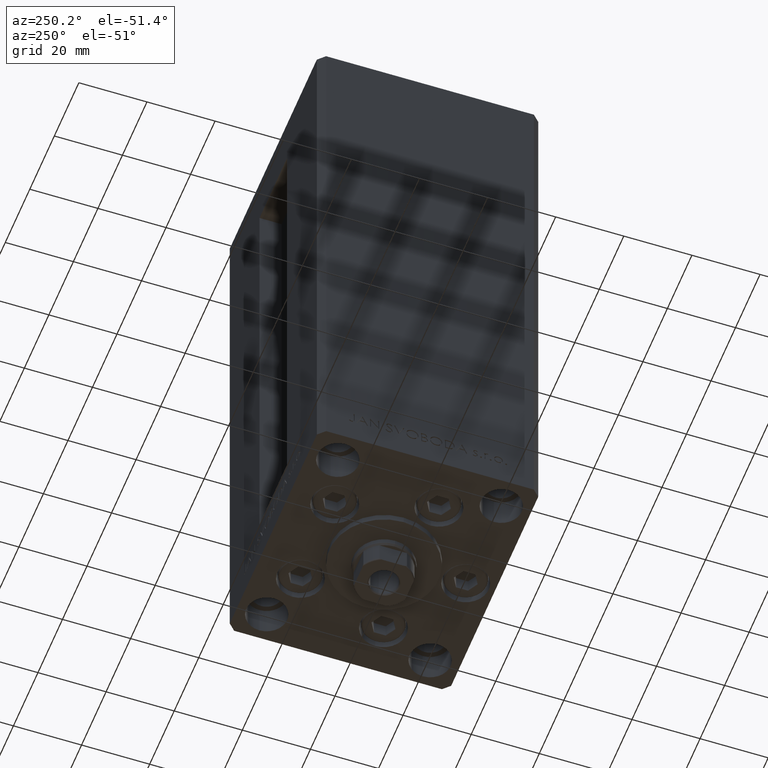
[diagram: clean part render]
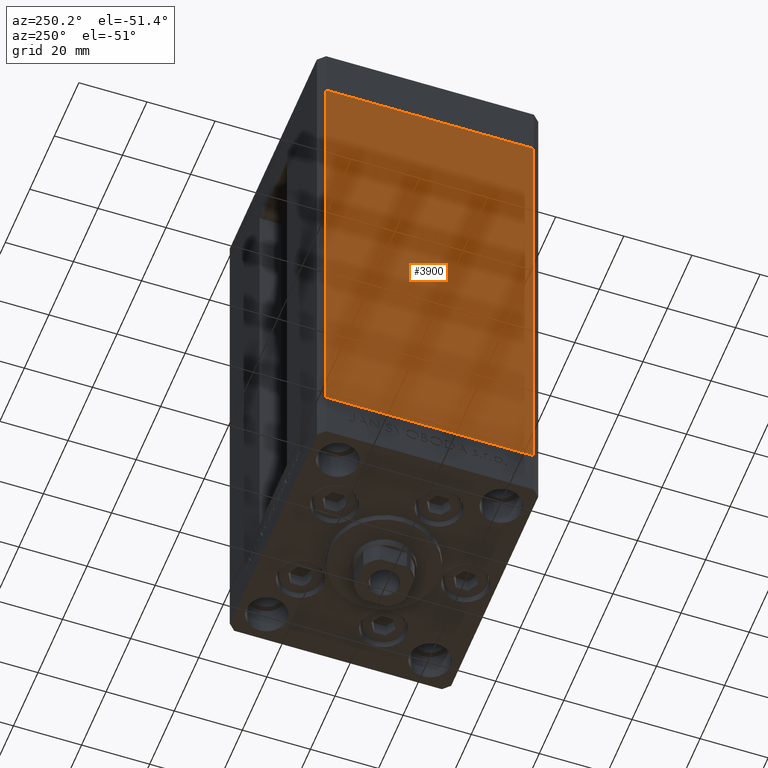
[diagram: same view with one face highlighted and labeled with its STEP entity id]
A machine part, auxiliary view. The second image highlights one B-rep face of the part: STEP entity #3900.
In plain terms, the highlighted planar face has unit normal (1, 0, 0).
Its self-contained STEP definition (entity closure, byte-faithful):
#629 = CARTESIAN_POINT ( 'NONE',  ( -37.50000000000000711, 30.50000000000000000, 136.0000000000000000 ) ) ;
#3900 = ADVANCED_FACE ( 'NONE', ( #21340 ), #18094, .F. ) ;
#4761 = CARTESIAN_POINT ( 'NONE',  ( -37.50000000000000711, 30.50000000000000000, 136.0000000000000000 ) ) ;
#5602 = CARTESIAN_POINT ( 'NONE',  ( -37.49999999999999289, -30.50000000000000000, 0.000000000000000000 ) ) ;
#7812 = ORIENTED_EDGE ( 'NONE', *, *, #46285, .T. ) ;
#8618 = EDGE_CURVE ( 'NONE', #16098, #37235, #42951, .T. ) ;
#9512 = DIRECTION ( 'NONE',  ( -0.000000000000000000, -0.000000000000000000, -1.000000000000000000 ) ) ;
#10384 = VECTOR ( 'NONE', #16566, 1000.000000000000000 ) ;
#15838 = VECTOR ( 'NONE', #38975, 1000.000000000000000 ) ;
#16075 = CARTESIAN_POINT ( 'NONE',  ( -37.50000000000000711, 30.50000000000000000, 136.0000000000000000 ) ) ;
#16098 = VERTEX_POINT ( 'NONE', #42174 ) ;
#16566 = DIRECTION ( 'NONE',  ( 2.275047181608927644E-16, -1.000000000000000000, 0.000000000000000000 ) ) ;
#17571 = ORIENTED_EDGE ( 'NONE', *, *, #47948, .T. ) ;
#17791 = EDGE_LOOP ( 'NONE', ( #17571, #31325, #31263, #7812 ) ) ;
#18094 = PLANE ( 'NONE',  #19306 ) ;
#19306 = AXIS2_PLACEMENT_3D ( 'NONE', #48051, #48297, #25316 ) ;
#19479 = VERTEX_POINT ( 'NONE', #39437 ) ;
#19907 = CARTESIAN_POINT ( 'NONE',  ( -37.49999999999999289, -30.50000000000000000, 136.0000000000000000 ) ) ;
#21340 = FACE_OUTER_BOUND ( 'NONE', #17791, .T. ) ;
#22189 = DIRECTION ( 'NONE',  ( 2.275047181608927644E-16, -1.000000000000000000, 0.000000000000000000 ) ) ;
#25316 = DIRECTION ( 'NONE',  ( -2.275047181608927644E-16, 1.000000000000000000, 0.000000000000000000 ) ) ;
#26397 = CARTESIAN_POINT ( 'NONE',  ( -37.50000000000000711, 30.50000000000000000, 0.000000000000000000 ) ) ;
#26982 = VECTOR ( 'NONE', #22189, 1000.000000000000000 ) ;
#29591 = VECTOR ( 'NONE', #9512, 1000.000000000000000 ) ;
#29862 = EDGE_CURVE ( 'NONE', #32540, #16098, #43083, .T. ) ;
#30365 = LINE ( 'NONE', #26397, #26982 ) ;
#31263 = ORIENTED_EDGE ( 'NONE', *, *, #29862, .F. ) ;
#31325 = ORIENTED_EDGE ( 'NONE', *, *, #8618, .F. ) ;
#32540 = VERTEX_POINT ( 'NONE', #4761 ) ;
#37235 = VERTEX_POINT ( 'NONE', #5602 ) ;
#38244 = LINE ( 'NONE', #629, #15838 ) ;
#38975 = DIRECTION ( 'NONE',  ( -0.000000000000000000, -0.000000000000000000, -1.000000000000000000 ) ) ;
#39437 = CARTESIAN_POINT ( 'NONE',  ( -37.50000000000000711, 30.50000000000000000, 0.000000000000000000 ) ) ;
#42174 = CARTESIAN_POINT ( 'NONE',  ( -37.49999999999999289, -30.50000000000000000, 136.0000000000000000 ) ) ;
#42951 = LINE ( 'NONE', #19907, #29591 ) ;
#43083 = LINE ( 'NONE', #16075, #10384 ) ;
#46285 = EDGE_CURVE ( 'NONE', #32540, #19479, #38244, .T. ) ;
#47948 = EDGE_CURVE ( 'NONE', #19479, #37235, #30365, .T. ) ;
#48051 = CARTESIAN_POINT ( 'NONE',  ( -37.50000000000000711, 30.50000000000000000, 136.0000000000000000 ) ) ;
#48297 = DIRECTION ( 'NONE',  ( 1.000000000000000000, 2.275047181608927644E-16, -0.000000000000000000 ) ) ;